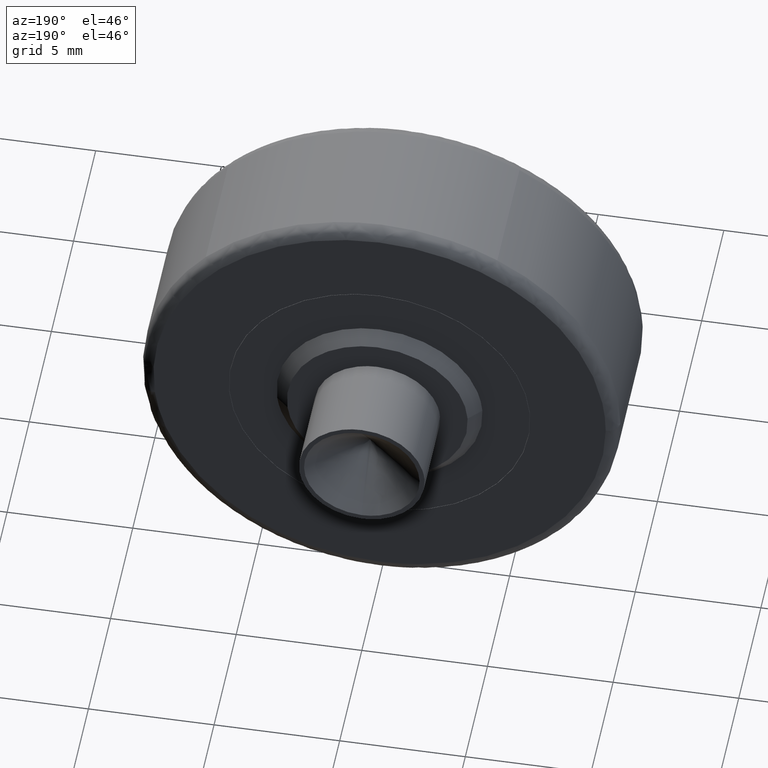
[diagram: clean part render]
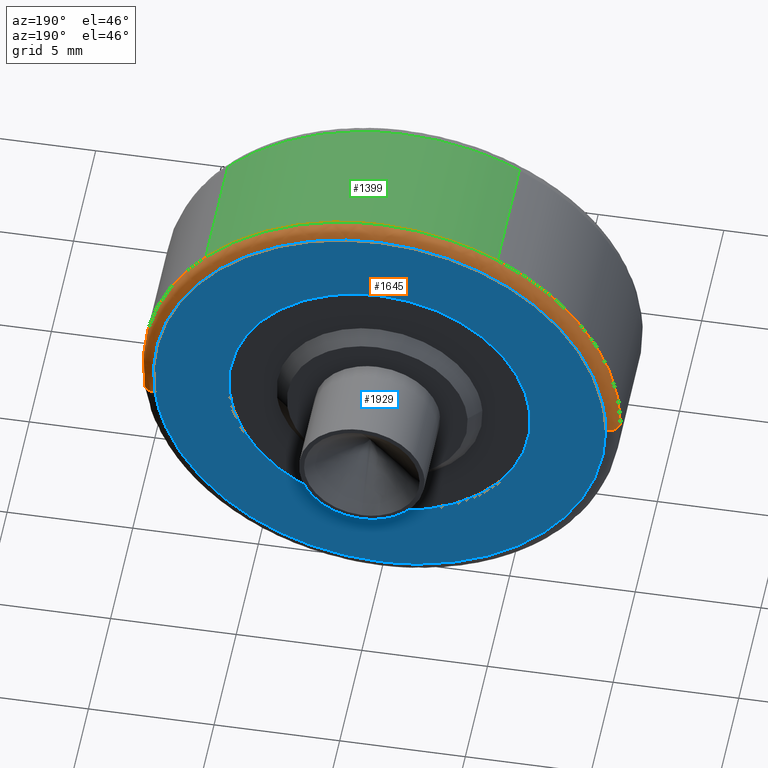
[diagram: same view with three faces highlighted in distinct colors, each labeled with its STEP entity id]
A machine part, auxiliary view with three faces highlighted in distinct colors.
Their STEP definitions:

[orange] entity #1645 — the highlighted face is a freeform B-spline surface patch.
#1199=CARTESIAN_POINT('',(-4.600085936569775,5.500000000009822,8.311991901834954));
#1200=VERTEX_POINT('',#1199);
#1206=CARTESIAN_POINT('',(-9.499999999999996,5.500000000078531,3.107089E-015));
#1207=VERTEX_POINT('',#1206);
#1208=CARTESIAN_POINT('',(-4.600085936569776,5.500000000009822,8.311991901834954));
#1209=CARTESIAN_POINT('',(-9.499999999999970,5.500000000032238,5.600244099408878));
#1210=CARTESIAN_POINT('',(-9.499999999999996,5.500000000078531,3.107089E-015));
#1218=(BOUNDED_CURVE()B_SPLINE_CURVE(2,(#1208,#1209,#1210),.UNSPECIFIED.,.F.,.U.)B_SPLINE_CURVE_WITH_KNOTS((3,3),(0.582484260833104,0.749999999999999),.UNSPECIFIED.)CURVE()GEOMETRIC_REPRESENTATION_ITEM()RATIONAL_B_SPLINE_CURVE((0.870495159877570,0.803743103813973,0.999999999999998))REPRESENTATION_ITEM(''));
#1219=EDGE_CURVE('',#1200,#1207,#1218,.T.);
#1236=CARTESIAN_POINT('',(9.436460568457928,5.500000000077355,-1.096910178610184));
#1237=VERTEX_POINT('',#1236);
#1251=CARTESIAN_POINT('',(7.004135044492157,5.500000000000000,6.418106596069947));
#1252=VERTEX_POINT('',#1251);
#1253=CARTESIAN_POINT('',(9.436460568457928,5.500000000077355,-1.096910178610185));
#1254=CARTESIAN_POINT('',(9.500000000000000,5.500000000000000,-0.550295376432844));
#1255=CARTESIAN_POINT('',(9.500000000000000,5.500000000000000,-1.773316E-016));
#1256=CARTESIAN_POINT('',(9.500000000000000,5.500000000000001,3.694347365060328));
#1257=CARTESIAN_POINT('',(7.004135044492157,5.500000000000000,6.418106596069947));
#1265=(BOUNDED_CURVE()B_SPLINE_CURVE(2,(#1253,#1254,#1255,#1256,#1257),.UNSPECIFIED.,.F.,.U.)B_SPLINE_CURVE_WITH_KNOTS((3,2,3),(0.229999999999893,0.250000000000000,0.368415192864189),.UNSPECIFIED.)CURVE()GEOMETRIC_REPRESENTATION_ITEM()RATIONAL_B_SPLINE_CURVE((0.956886118190449,0.976568542494799,1.0,0.861267972022367,0.853959782840026))REPRESENTATION_ITEM(''));
#1266=EDGE_CURVE('',#1237,#1252,#1265,.T.);
#1368=CARTESIAN_POINT('',(0.0,5.500000000000000,9.500000000000000));
#1369=VERTEX_POINT('',#1368);
#1370=CARTESIAN_POINT('',(7.004135044492157,5.500000000000000,6.418106596069947));
#1371=CARTESIAN_POINT('',(4.180100652646005,5.499999999999999,9.500000000000000));
#1372=CARTESIAN_POINT('',(0.0,5.500000000000000,9.500000000000000));
#1380=(BOUNDED_CURVE()B_SPLINE_CURVE(2,(#1370,#1371,#1372),.UNSPECIFIED.,.F.,.U.)B_SPLINE_CURVE_WITH_KNOTS((3,3),(0.368415192864190,0.500000000000000),.UNSPECIFIED.)CURVE()GEOMETRIC_REPRESENTATION_ITEM()RATIONAL_B_SPLINE_CURVE((0.853959782840026,0.845838809164181,1.0))REPRESENTATION_ITEM(''));
#1381=EDGE_CURVE('',#1252,#1369,#1380,.T.);
#1383=CARTESIAN_POINT('',(0.0,5.500000000000000,9.500000000000000));
#1384=CARTESIAN_POINT('',(-2.453449150339624,5.500000000000000,9.500000000000000));
#1385=CARTESIAN_POINT('',(-4.600085936569776,5.500000000009822,8.311991901834954));
#1393=(BOUNDED_CURVE()B_SPLINE_CURVE(2,(#1383,#1384,#1385),.UNSPECIFIED.,.F.,.U.)B_SPLINE_CURVE_WITH_KNOTS((3,3),(0.500000000000000,0.582484260833104),.UNSPECIFIED.)CURVE()GEOMETRIC_REPRESENTATION_ITEM()RATIONAL_B_SPLINE_CURVE((1.0,0.903363677372575,0.870495159877570))REPRESENTATION_ITEM(''));
#1394=EDGE_CURVE('',#1369,#1200,#1393,.T.);
#1550=CARTESIAN_POINT('',(8.905361498906432,5.998796175226596,-1.035173304424121));
#1551=CARTESIAN_POINT('',(8.965324712267668,5.998796175226595,-0.519323359940728));
#1552=CARTESIAN_POINT('',(8.965324712267668,5.998796175226595,-1.646849E-015));
#1553=CARTESIAN_POINT('',(8.965324712267668,5.998796175226596,8.965324712267668));
#1554=CARTESIAN_POINT('',(2.195799E-015,5.998796175226595,8.965324712267668));
#1555=CARTESIAN_POINT('',(-8.965324712267664,5.998796175226596,8.965324712267668));
#1556=CARTESIAN_POINT('',(-8.965324712267668,5.998796175226595,2.744748E-015));
#1557=CARTESIAN_POINT('',(9.475070354443339,6.038667842741714,-1.101397162783857));
#1558=CARTESIAN_POINT('',(9.538869635959983,6.038667842741713,-0.552546392726285));
#1559=CARTESIAN_POINT('',(9.538869635959982,6.038667842741715,-1.752204E-015));
#1560=CARTESIAN_POINT('',(9.538869635959982,6.038667842741711,9.538869635959978));
#1561=CARTESIAN_POINT('',(2.336272E-015,6.038667842741715,9.538869635959982));
#1562=CARTESIAN_POINT('',(-9.538869635959978,6.038667842741711,9.538869635959982));
#1563=CARTESIAN_POINT('',(-9.538869635959982,6.038667842741715,2.920340E-015));
#1564=CARTESIAN_POINT('',(9.435251983620422,5.465137893018173,-1.096768612386817));
#1565=CARTESIAN_POINT('',(9.498783152779625,5.465137893018171,-0.550224352220051));
#1566=CARTESIAN_POINT('',(9.498783152779625,5.465137893018171,-1.744841E-015));
#1567=CARTESIAN_POINT('',(9.498783152779627,5.465137893018171,9.498783152779625));
#1568=CARTESIAN_POINT('',(2.326454E-015,5.465137893018171,9.498783152779625));
#1569=CARTESIAN_POINT('',(-9.498783152779621,5.465137893018171,9.498783152779627));
#1570=CARTESIAN_POINT('',(-9.498783152779625,5.465137893018171,2.908068E-015));
#1578=(BOUNDED_SURFACE()B_SPLINE_SURFACE(2,2,((#1550,#1557,#1564),(#1551,#1558,#1565),(#1552,#1559,#1566),(#1553,#1560,#1567),(#1554,#1561,#1568),(#1555,#1562,#1569),(#1556,#1563,#1570)),.UNSPECIFIED.,.F.,.F.,.U.)B_SPLINE_SURFACE_WITH_KNOTS((3,2,2,3),(3,3),(0.0,1.259046737813482,16.997145969503030,32.735245201192583),(0.0,0.911185181254624),.UNSPECIFIED.)GEOMETRIC_REPRESENTATION_ITEM()RATIONAL_B_SPLINE_SURFACE(((0.876475779619699,0.573569932033053,0.871620856583481),(0.894504209402347,0.585367822500240,0.889549424349295),(0.915966621911565,0.599412927647948,0.910892953526734),(0.647686209694202,0.423848945870745,0.644098584373797),(0.915966621911565,0.599412927647948,0.910892953526734),(0.647686209694202,0.423848945870745,0.644098584373797),(0.915966621911565,0.599412927647948,0.910892953526734)))REPRESENTATION_ITEM('')SURFACE());
#1579=ORIENTED_EDGE('',*,*,#1381,.F.);
#1580=ORIENTED_EDGE('',*,*,#1266,.F.);
#1581=CARTESIAN_POINT('',(8.939804749547164,5.999999999999999,-1.039178064013100));
#1582=VERTEX_POINT('',#1581);
#1583=CARTESIAN_POINT('',(8.939804749547164,5.999999999999999,-1.039178064013100));
#1584=CARTESIAN_POINT('',(9.436460568304598,5.999999999027542,-1.096910178589340));
#1585=CARTESIAN_POINT('',(9.436460568457928,5.500000000077355,-1.096910178610184));
#1593=(BOUNDED_CURVE()B_SPLINE_CURVE(2,(#1583,#1584,#1585),.UNSPECIFIED.,.F.,.U.)B_SPLINE_CURVE_WITH_KNOTS((3,3),(-1.736413119059253,-0.276558718333807),.UNSPECIFIED.)CURVE()GEOMETRIC_REPRESENTATION_ITEM()RATIONAL_B_SPLINE_CURVE((0.850203275608831,0.599621899608375,0.845789311790045))REPRESENTATION_ITEM(''));
#1594=EDGE_CURVE('',#1582,#1237,#1593,.T.);
#1595=ORIENTED_EDGE('',*,*,#1594,.F.);
#1596=CARTESIAN_POINT('',(0.0,6.0,9.0));
#1597=VERTEX_POINT('',#1596);
#1598=CARTESIAN_POINT('',(8.939804749547164,5.999999999999999,-1.039178064013100));
#1599=CARTESIAN_POINT('',(9.0,6.000000000000001,-0.521332461894320));
#1600=CARTESIAN_POINT('',(9.0,6.0,-1.773316E-016));
#1601=CARTESIAN_POINT('',(9.0,6.0,9.0));
#1602=CARTESIAN_POINT('',(0.0,6.0,9.0));
#1610=(BOUNDED_CURVE()B_SPLINE_CURVE(2,(#1598,#1599,#1600,#1601,#1602),.UNSPECIFIED.,.F.,.U.)B_SPLINE_CURVE_WITH_KNOTS((3,2,3),(0.229999999999497,0.250000000000000,0.500000000000000),.UNSPECIFIED.)CURVE()GEOMETRIC_REPRESENTATION_ITEM()RATIONAL_B_SPLINE_CURVE((0.956886118189670,0.976568542494334,1.0,0.707106781186547,1.0))REPRESENTATION_ITEM(''));
#1611=EDGE_CURVE('',#1582,#1597,#1610,.T.);
#1612=ORIENTED_EDGE('',*,*,#1611,.T.);
#1613=CARTESIAN_POINT('',(-9.000000000022807,6.0,4.426226E-016));
#1614=VERTEX_POINT('',#1613);
#1615=CARTESIAN_POINT('',(0.0,6.0,9.0));
#1616=CARTESIAN_POINT('',(-8.999999999999957,6.0,9.000000000000002));
#1617=CARTESIAN_POINT('',(-9.000000000022807,5.999999999999999,4.426226E-016));
#1625=(BOUNDED_CURVE()B_SPLINE_CURVE(2,(#1615,#1616,#1617),.UNSPECIFIED.,.F.,.U.)B_SPLINE_CURVE_WITH_KNOTS((3,3),(0.500000000000000,0.749999999999999),.UNSPECIFIED.)CURVE()GEOMETRIC_REPRESENTATION_ITEM()RATIONAL_B_SPLINE_CURVE((1.0,0.707106781186548,0.999999999999998))REPRESENTATION_ITEM(''));
#1626=EDGE_CURVE('',#1597,#1614,#1625,.T.);
#1627=ORIENTED_EDGE('',*,*,#1626,.T.);
#1628=CARTESIAN_POINT('',(-9.000000000022807,6.0,4.426226E-016));
#1629=CARTESIAN_POINT('',(-9.499999999842931,5.999999999954381,8.742504E-016));
#1630=CARTESIAN_POINT('',(-9.499999999999996,5.500000000078531,3.107089E-015));
#1638=(BOUNDED_CURVE()B_SPLINE_CURVE(2,(#1628,#1629,#1630),.UNSPECIFIED.,.F.,.U.)B_SPLINE_CURVE_WITH_KNOTS((3,3),(-1.736413120977746,-0.276558718338653),.UNSPECIFIED.)CURVE()GEOMETRIC_REPRESENTATION_ITEM()RATIONAL_B_SPLINE_CURVE((0.888510409028674,0.626638727312195,0.883897567024676))REPRESENTATION_ITEM(''));
#1639=EDGE_CURVE('',#1614,#1207,#1638,.T.);
#1640=ORIENTED_EDGE('',*,*,#1639,.T.);
#1641=ORIENTED_EDGE('',*,*,#1219,.F.);
#1642=ORIENTED_EDGE('',*,*,#1394,.F.);
#1643=EDGE_LOOP('',(#1579,#1580,#1595,#1612,#1627,#1640,#1641,#1642));
#1644=FACE_OUTER_BOUND('',#1643,.T.);
#1645=ADVANCED_FACE('',(#1644),#1578,.T.);

[blue] entity #1929 — the highlighted face is a freeform B-spline surface patch.
#451=CARTESIAN_POINT('',(-5.981504628515259,6.0,0.470746618667448));
#452=VERTEX_POINT('',#451);
#458=CARTESIAN_POINT('',(0.0,6.0,6.0));
#459=VERTEX_POINT('',#458);
#460=CARTESIAN_POINT('',(0.0,6.0,6.0));
#461=CARTESIAN_POINT('',(-5.546350349677546,6.0,6.0));
#462=CARTESIAN_POINT('',(-5.981504628515259,6.0,0.470746618667448));
#470=(BOUNDED_CURVE()B_SPLINE_CURVE(2,(#460,#461,#462),.UNSPECIFIED.,.F.,.U.)B_SPLINE_CURVE_WITH_KNOTS((3,3),(0.0,0.236331528635949),.UNSPECIFIED.)CURVE()GEOMETRIC_REPRESENTATION_ITEM()RATIONAL_B_SPLINE_CURVE((1.0,0.723120391482854,0.969723831997549))REPRESENTATION_ITEM(''));
#471=EDGE_CURVE('',#459,#452,#470,.T.);
#473=CARTESIAN_POINT('',(5.981504628515259,6.0,-0.470746618667448));
#474=VERTEX_POINT('',#473);
#475=CARTESIAN_POINT('',(5.981504628515259,6.0,-0.470746618667448));
#476=CARTESIAN_POINT('',(6.0,6.0,-0.235736645736784));
#477=CARTESIAN_POINT('',(6.0,6.0,0.0));
#478=CARTESIAN_POINT('',(6.0,6.0,6.0));
#479=CARTESIAN_POINT('',(0.0,6.0,6.0));
#487=(BOUNDED_CURVE()B_SPLINE_CURVE(2,(#475,#476,#477,#478,#479),.UNSPECIFIED.,.F.,.U.)B_SPLINE_CURVE_WITH_KNOTS((3,2,3),(0.736331528635949,0.750000000000000,1.0),.UNSPECIFIED.)CURVE()GEOMETRIC_REPRESENTATION_ITEM()RATIONAL_B_SPLINE_CURVE((0.969723831997549,0.983986389703694,1.0,0.707106781186548,1.0))REPRESENTATION_ITEM(''));
#488=EDGE_CURVE('',#474,#459,#487,.T.);
#564=CARTESIAN_POINT('',(0.0,6.0,-6.0));
#565=VERTEX_POINT('',#564);
#566=CARTESIAN_POINT('',(0.0,6.0,-6.0));
#567=CARTESIAN_POINT('',(5.546350349677546,6.0,-6.0));
#568=CARTESIAN_POINT('',(5.981504628515259,6.0,-0.470746618667448));
#576=(BOUNDED_CURVE()B_SPLINE_CURVE(2,(#566,#567,#568),.UNSPECIFIED.,.F.,.U.)B_SPLINE_CURVE_WITH_KNOTS((3,3),(0.500000000000000,0.736331528635949),.UNSPECIFIED.)CURVE()GEOMETRIC_REPRESENTATION_ITEM()RATIONAL_B_SPLINE_CURVE((1.0,0.723120391482854,0.969723831997549))REPRESENTATION_ITEM(''));
#577=EDGE_CURVE('',#565,#474,#576,.T.);
#579=CARTESIAN_POINT('',(-5.981504628515259,6.0,0.470746618667448));
#580=CARTESIAN_POINT('',(-6.0,6.0,0.235736645736784));
#581=CARTESIAN_POINT('',(-6.0,6.0,0.0));
#582=CARTESIAN_POINT('',(-6.0,6.0,-6.0));
#583=CARTESIAN_POINT('',(0.0,6.0,-6.0));
#591=(BOUNDED_CURVE()B_SPLINE_CURVE(2,(#579,#580,#581,#582,#583),.UNSPECIFIED.,.F.,.U.)B_SPLINE_CURVE_WITH_KNOTS((3,2,3),(0.236331528635949,0.250000000000000,0.500000000000000),.UNSPECIFIED.)CURVE()GEOMETRIC_REPRESENTATION_ITEM()RATIONAL_B_SPLINE_CURVE((0.969723831997549,0.983986389703694,1.0,0.707106781186548,1.0))REPRESENTATION_ITEM(''));
#592=EDGE_CURVE('',#452,#565,#591,.T.);
#1581=CARTESIAN_POINT('',(8.939804749547164,5.999999999999999,-1.039178064013100));
#1582=VERTEX_POINT('',#1581);
#1596=CARTESIAN_POINT('',(0.0,6.0,9.0));
#1597=VERTEX_POINT('',#1596);
#1598=CARTESIAN_POINT('',(8.939804749547164,5.999999999999999,-1.039178064013100));
#1599=CARTESIAN_POINT('',(9.0,6.000000000000001,-0.521332461894320));
#1600=CARTESIAN_POINT('',(9.0,6.0,-1.773316E-016));
#1601=CARTESIAN_POINT('',(9.0,6.0,9.0));
#1602=CARTESIAN_POINT('',(0.0,6.0,9.0));
#1610=(BOUNDED_CURVE()B_SPLINE_CURVE(2,(#1598,#1599,#1600,#1601,#1602),.UNSPECIFIED.,.F.,.U.)B_SPLINE_CURVE_WITH_KNOTS((3,2,3),(0.229999999999497,0.250000000000000,0.500000000000000),.UNSPECIFIED.)CURVE()GEOMETRIC_REPRESENTATION_ITEM()RATIONAL_B_SPLINE_CURVE((0.956886118189670,0.976568542494334,1.0,0.707106781186547,1.0))REPRESENTATION_ITEM(''));
#1611=EDGE_CURVE('',#1582,#1597,#1610,.T.);
#1613=CARTESIAN_POINT('',(-9.000000000022807,6.0,4.426226E-016));
#1614=VERTEX_POINT('',#1613);
#1615=CARTESIAN_POINT('',(0.0,6.0,9.0));
#1616=CARTESIAN_POINT('',(-8.999999999999957,6.0,9.000000000000002));
#1617=CARTESIAN_POINT('',(-9.000000000022807,5.999999999999999,4.426226E-016));
#1625=(BOUNDED_CURVE()B_SPLINE_CURVE(2,(#1615,#1616,#1617),.UNSPECIFIED.,.F.,.U.)B_SPLINE_CURVE_WITH_KNOTS((3,3),(0.500000000000000,0.749999999999999),.UNSPECIFIED.)CURVE()GEOMETRIC_REPRESENTATION_ITEM()RATIONAL_B_SPLINE_CURVE((1.0,0.707106781186548,0.999999999999998))REPRESENTATION_ITEM(''));
#1626=EDGE_CURVE('',#1597,#1614,#1625,.T.);
#1672=CARTESIAN_POINT('',(0.0,6.0,-9.0));
#1673=VERTEX_POINT('',#1672);
#1674=CARTESIAN_POINT('',(-9.000000000022807,6.0,4.426226E-016));
#1675=CARTESIAN_POINT('',(-9.0,6.0,-9.0));
#1676=CARTESIAN_POINT('',(0.0,6.0,-9.0));
#1684=(BOUNDED_CURVE()B_SPLINE_CURVE(2,(#1674,#1675,#1676),.UNSPECIFIED.,.F.,.U.)B_SPLINE_CURVE_WITH_KNOTS((3,3),(0.750000000000000,1.0),.UNSPECIFIED.)CURVE()GEOMETRIC_REPRESENTATION_ITEM()RATIONAL_B_SPLINE_CURVE((1.0,0.707106781186547,1.0))REPRESENTATION_ITEM(''));
#1685=EDGE_CURVE('',#1614,#1673,#1684,.T.);
#1687=CARTESIAN_POINT('',(0.0,6.0,-9.0));
#1688=CARTESIAN_POINT('',(8.014425307418494,6.000000000000001,-9.0));
#1689=CARTESIAN_POINT('',(8.939804749547164,5.999999999999999,-1.039178064013100));
#1697=(BOUNDED_CURVE()B_SPLINE_CURVE(2,(#1687,#1688,#1689),.UNSPECIFIED.,.F.,.U.)B_SPLINE_CURVE_WITH_KNOTS((3,3),(0.0,0.229999999999497),.UNSPECIFIED.)CURVE()GEOMETRIC_REPRESENTATION_ITEM()RATIONAL_B_SPLINE_CURVE((1.0,0.730538238692213,0.956886118189670))REPRESENTATION_ITEM(''));
#1698=EDGE_CURVE('',#1673,#1582,#1697,.T.);
#1912=CARTESIAN_POINT('',(-9.899097538366979,6.0,-9.899099965112507));
#1913=CARTESIAN_POINT('',(-9.899097538366979,6.0,9.899100447910129));
#1914=CARTESIAN_POINT('',(9.899049436877284,6.0,-9.899099965112507));
#1915=CARTESIAN_POINT('',(9.899049436877284,6.0,9.899100447910129));
#1916=B_SPLINE_SURFACE_WITH_KNOTS('',1,1,((#1912,#1914),(#1913,#1915)),.UNSPECIFIED.,.F.,.F.,.U.,(2,2),(2,2),(0.0,19.798200413022631),(0.0,19.798146975244268),.UNSPECIFIED.);
#1917=ORIENTED_EDGE('',*,*,#1685,.F.);
#1918=ORIENTED_EDGE('',*,*,#1626,.F.);
#1919=ORIENTED_EDGE('',*,*,#1611,.F.);
#1920=ORIENTED_EDGE('',*,*,#1698,.F.);
#1921=EDGE_LOOP('',(#1917,#1918,#1919,#1920));
#1922=FACE_OUTER_BOUND('',#1921,.T.);
#1923=ORIENTED_EDGE('',*,*,#577,.T.);
#1924=ORIENTED_EDGE('',*,*,#488,.T.);
#1925=ORIENTED_EDGE('',*,*,#471,.T.);
#1926=ORIENTED_EDGE('',*,*,#592,.T.);
#1927=EDGE_LOOP('',(#1923,#1924,#1925,#1926));
#1928=FACE_BOUND('',#1927,.T.);
#1929=ADVANCED_FACE('',(#1922,#1928),#1916,.T.);

[green] entity #1399 — the highlighted face is a freeform B-spline surface patch.
#1182=CARTESIAN_POINT('',(-4.600085988359925,0.499999999981940,8.311991873172854));
#1183=VERTEX_POINT('',#1182);
#1199=CARTESIAN_POINT('',(-4.600085936569775,5.500000000009822,8.311991901834954));
#1200=VERTEX_POINT('',#1199);
#1201=CARTESIAN_POINT('',(-4.600085936569775,5.500000000009822,8.311991901834954));
#1202=CARTESIAN_POINT('',(-4.600085988359925,0.499999999981940,8.311991873172854));
#1203=QUASI_UNIFORM_CURVE('',1,(#1201,#1202),.UNSPECIFIED.,.F.,.U.);
#1204=EDGE_CURVE('',#1200,#1183,#1203,.T.);
#1251=CARTESIAN_POINT('',(7.004135044492157,5.500000000000000,6.418106596069947));
#1252=VERTEX_POINT('',#1251);
#1268=CARTESIAN_POINT('',(7.004135048799357,0.500000000000003,6.418106591369461));
#1269=VERTEX_POINT('',#1268);
#1270=CARTESIAN_POINT('',(7.004135044492157,5.500000000000000,6.418106596069947));
#1271=CARTESIAN_POINT('',(7.004135048799357,0.500000000000003,6.418106591369461));
#1272=QUASI_UNIFORM_CURVE('',1,(#1270,#1271),.UNSPECIFIED.,.F.,.U.);
#1273=EDGE_CURVE('',#1252,#1269,#1272,.T.);
#1325=CARTESIAN_POINT('',(7.004134699696176,5.625000000084012,6.418106972348770));
#1326=CARTESIAN_POINT('',(1.948014980622770,5.625000000084013,11.935893404197556));
#1327=CARTESIAN_POINT('',(-4.600087456416605,5.625000000084011,8.311991060709735));
#1328=CARTESIAN_POINT('',(7.004134699696176,0.371874999853670,6.418106972348770));
#1329=CARTESIAN_POINT('',(1.948014980622770,0.371874999853670,11.935893404197556));
#1330=CARTESIAN_POINT('',(-4.600087456416605,0.371874999853670,8.311991060709735));
#1338=(BOUNDED_SURFACE()B_SPLINE_SURFACE(2,1,((#1325,#1328),(#1326,#1329),(#1327,#1330)),.UNSPECIFIED.,.F.,.F.,.U.)B_SPLINE_SURFACE_WITH_KNOTS((3,3),(2,2),(0.0,13.163877663838170),(0.0,5.253125000230342),.UNSPECIFIED.)GEOMETRIC_REPRESENTATION_ITEM()RATIONAL_B_SPLINE_SURFACE(((1.0,1.0),(0.753969696196700,0.753969696196700),(0.921270302782944,0.921270302782944)))REPRESENTATION_ITEM('')SURFACE());
#1339=CARTESIAN_POINT('',(0.0,0.500000000000000,9.500000000000000));
#1340=VERTEX_POINT('',#1339);
#1341=CARTESIAN_POINT('',(0.0,0.500000000000000,9.500000000000000));
#1342=CARTESIAN_POINT('',(-2.453449181909779,0.500000000000000,9.499999999999998));
#1343=CARTESIAN_POINT('',(-4.600085988359925,0.499999999981940,8.311991873172854));
#1351=(BOUNDED_CURVE()B_SPLINE_CURVE(2,(#1341,#1342,#1343),.UNSPECIFIED.,.F.,.U.)B_SPLINE_CURVE_WITH_KNOTS((3,3),(0.500000000000000,0.582484261791916),.UNSPECIFIED.)CURVE()GEOMETRIC_REPRESENTATION_ITEM()RATIONAL_B_SPLINE_CURVE((1.0,0.903363676249257,0.870495159113431))REPRESENTATION_ITEM(''));
#1352=EDGE_CURVE('',#1340,#1183,#1351,.T.);
#1353=ORIENTED_EDGE('',*,*,#1352,.F.);
#1354=CARTESIAN_POINT('',(7.004135048799357,0.500000000000003,6.418106591369461));
#1355=CARTESIAN_POINT('',(4.180100660255818,0.500000000000000,9.500000000000000));
#1356=CARTESIAN_POINT('',(0.0,0.500000000000000,9.500000000000000));
#1364=(BOUNDED_CURVE()B_SPLINE_CURVE(2,(#1354,#1355,#1356),.UNSPECIFIED.,.F.,.U.)B_SPLINE_CURVE_WITH_KNOTS((3,3),(0.368415192661570,0.500000000000000),.UNSPECIFIED.)CURVE()GEOMETRIC_REPRESENTATION_ITEM()RATIONAL_B_SPLINE_CURVE((0.853959782865036,0.845838808926797,1.0))REPRESENTATION_ITEM(''));
#1365=EDGE_CURVE('',#1269,#1340,#1364,.T.);
#1366=ORIENTED_EDGE('',*,*,#1365,.F.);
#1367=ORIENTED_EDGE('',*,*,#1273,.F.);
#1368=CARTESIAN_POINT('',(0.0,5.500000000000000,9.500000000000000));
#1369=VERTEX_POINT('',#1368);
#1370=CARTESIAN_POINT('',(7.004135044492157,5.500000000000000,6.418106596069947));
#1371=CARTESIAN_POINT('',(4.180100652646005,5.499999999999999,9.500000000000000));
#1372=CARTESIAN_POINT('',(0.0,5.500000000000000,9.500000000000000));
#1380=(BOUNDED_CURVE()B_SPLINE_CURVE(2,(#1370,#1371,#1372),.UNSPECIFIED.,.F.,.U.)B_SPLINE_CURVE_WITH_KNOTS((3,3),(0.368415192864190,0.500000000000000),.UNSPECIFIED.)CURVE()GEOMETRIC_REPRESENTATION_ITEM()RATIONAL_B_SPLINE_CURVE((0.853959782840026,0.845838809164181,1.0))REPRESENTATION_ITEM(''));
#1381=EDGE_CURVE('',#1252,#1369,#1380,.T.);
#1382=ORIENTED_EDGE('',*,*,#1381,.T.);
#1383=CARTESIAN_POINT('',(0.0,5.500000000000000,9.500000000000000));
#1384=CARTESIAN_POINT('',(-2.453449150339624,5.500000000000000,9.500000000000000));
#1385=CARTESIAN_POINT('',(-4.600085936569776,5.500000000009822,8.311991901834954));
#1393=(BOUNDED_CURVE()B_SPLINE_CURVE(2,(#1383,#1384,#1385),.UNSPECIFIED.,.F.,.U.)B_SPLINE_CURVE_WITH_KNOTS((3,3),(0.500000000000000,0.582484260833104),.UNSPECIFIED.)CURVE()GEOMETRIC_REPRESENTATION_ITEM()RATIONAL_B_SPLINE_CURVE((1.0,0.903363677372575,0.870495159877570))REPRESENTATION_ITEM(''));
#1394=EDGE_CURVE('',#1369,#1200,#1393,.T.);
#1395=ORIENTED_EDGE('',*,*,#1394,.T.);
#1396=ORIENTED_EDGE('',*,*,#1204,.T.);
#1397=EDGE_LOOP('',(#1353,#1366,#1367,#1382,#1395,#1396));
#1398=FACE_OUTER_BOUND('',#1397,.T.);
#1399=ADVANCED_FACE('',(#1398),#1338,.T.);